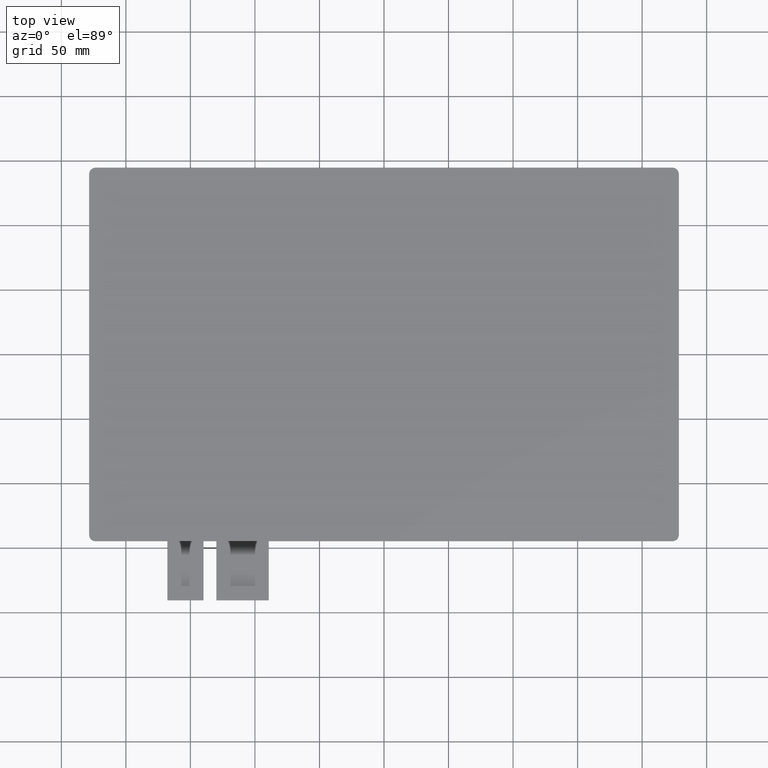
[diagram: clean part render]
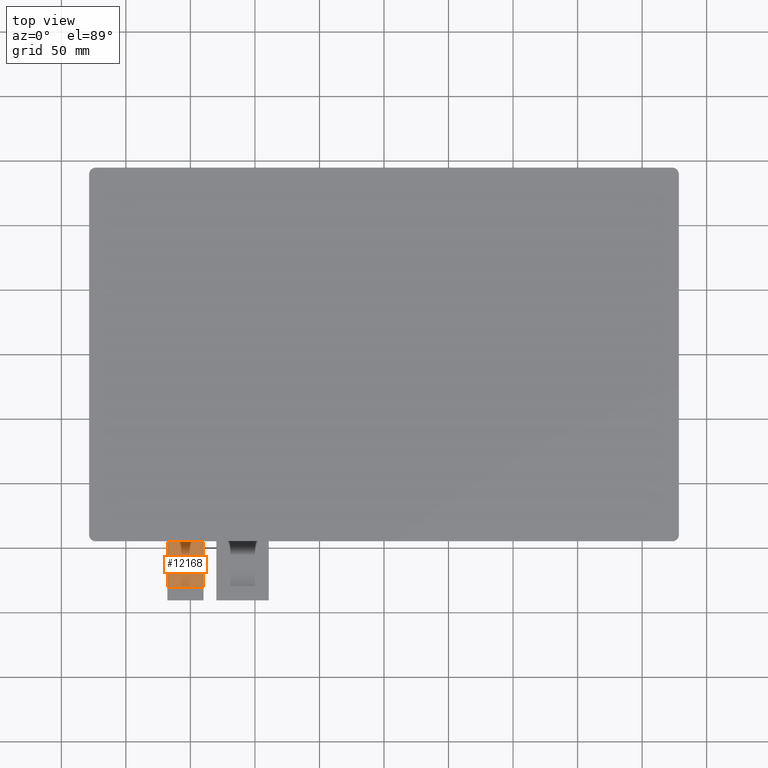
[diagram: same view with one face highlighted and labeled with its STEP entity id]
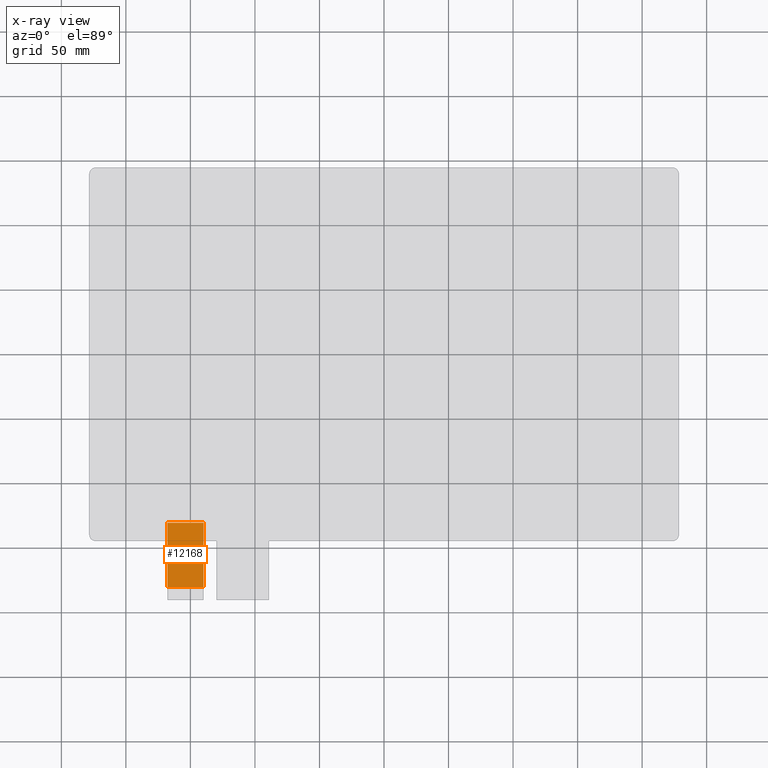
[diagram: x-ray of the same camera — body ghosted, the highlighted face saturated]
A machine part, top view. The second image highlights one B-rep face of the part: STEP entity #12168.
The next image is the same camera in x-ray: the body ghosted, the highlighted face saturated — about 0% of this face is hidden behind the body in this view.
In plain terms, the highlighted planar face has unit normal (0, 0, 1).
Its self-contained STEP definition (entity closure, byte-faithful):
#608=PLANE('',#12782);
#1188=FACE_OUTER_BOUND('',#1772,.T.);
#1772=EDGE_LOOP('',(#11483,#11484,#11485,#11486));
#3448=LINE('',#19050,#5164);
#3459=LINE('',#19072,#5175);
#3469=LINE('',#19091,#5185);
#3470=LINE('',#19093,#5186);
#5164=VECTOR('',#15584,10.);
#5175=VECTOR('',#15603,10.);
#5185=VECTOR('',#15623,10.);
#5186=VECTOR('',#15626,10.);
#6354=VERTEX_POINT('',#19047);
#6355=VERTEX_POINT('',#19049);
#6362=VERTEX_POINT('',#19071);
#6366=VERTEX_POINT('',#19089);
#8060=EDGE_CURVE('',#6355,#6354,#3448,.T.);
#8071=EDGE_CURVE('',#6354,#6362,#3459,.T.);
#8081=EDGE_CURVE('',#6362,#6366,#3469,.T.);
#8082=EDGE_CURVE('',#6355,#6366,#3470,.T.);
#11483=ORIENTED_EDGE('',*,*,#8071,.T.);
#11484=ORIENTED_EDGE('',*,*,#8081,.T.);
#11485=ORIENTED_EDGE('',*,*,#8082,.F.);
#11486=ORIENTED_EDGE('',*,*,#8060,.T.);
#12168=ADVANCED_FACE('',(#1188),#608,.T.);
#12782=AXIS2_PLACEMENT_3D('',#19092,#15624,#15625);
#15584=DIRECTION('',(1.1842378929335E-15,-1.,0.));
#15603=DIRECTION('',(1.,0.,0.));
#15623=DIRECTION('',(0.,1.,0.));
#15624=DIRECTION('center_axis',(0.,0.,1.));
#15625=DIRECTION('ref_axis',(1.,0.,0.));
#15626=DIRECTION('',(1.,1.24220758000017E-16,0.));
#19047=CARTESIAN_POINT('',(-167.83,-180.5,-1.25));
#19049=CARTESIAN_POINT('',(-167.83,-130.5,-1.25));
#19050=CARTESIAN_POINT('',(-167.83,-130.5,-1.25));
#19071=CARTESIAN_POINT('',(-139.83,-180.5,-1.25));
#19072=CARTESIAN_POINT('',(-146.83,-180.5,-1.25));
#19089=CARTESIAN_POINT('',(-139.83,-130.5,-1.25));
#19091=CARTESIAN_POINT('',(-139.83,-190.5,-1.25));
#19092=CARTESIAN_POINT('Origin',(-153.83,-160.5,-1.25));
#19093=CARTESIAN_POINT('',(29.435,-130.5,-1.25));